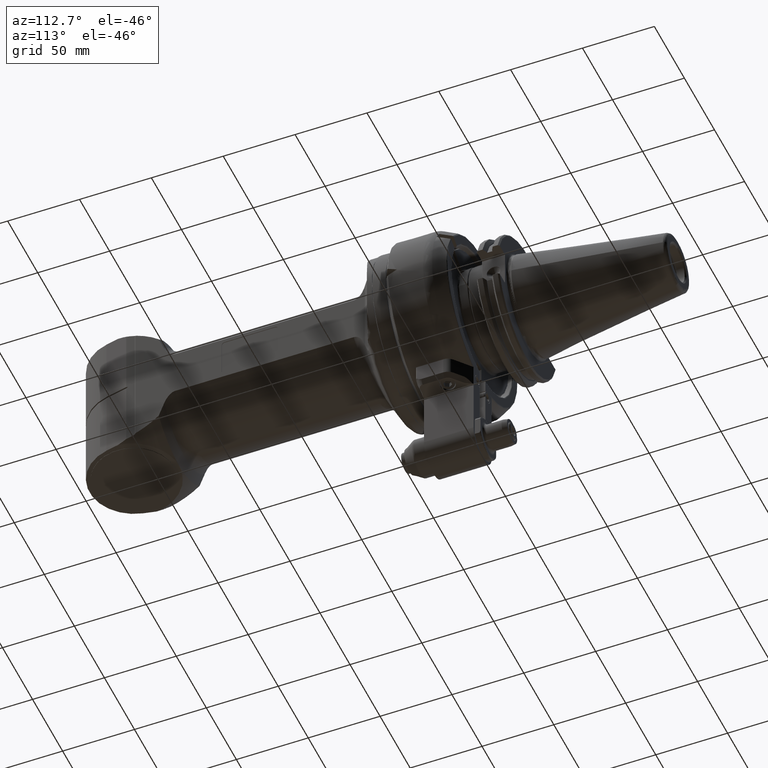
[diagram: clean part render]
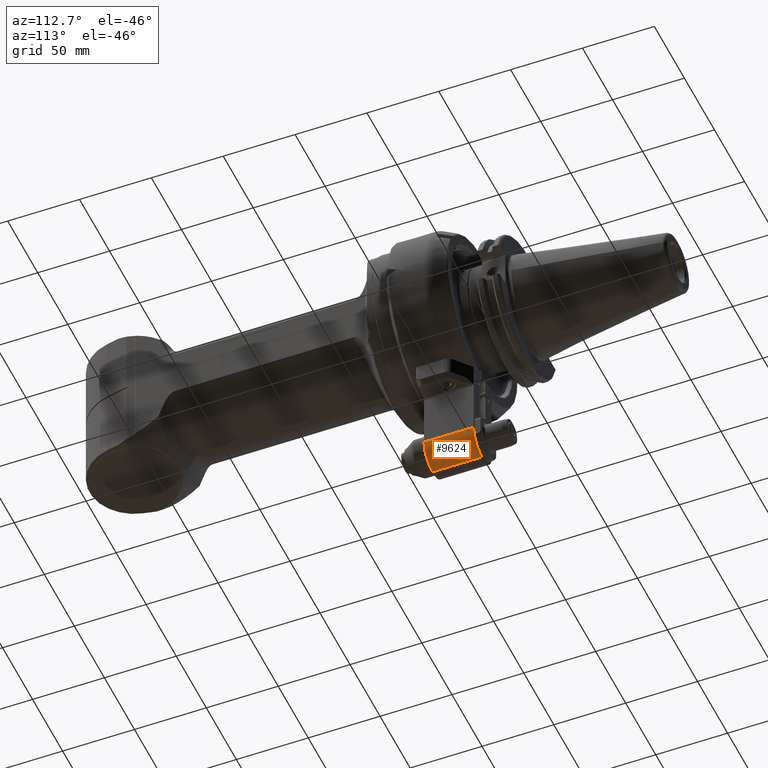
[diagram: same view with one face highlighted and labeled with its STEP entity id]
A machine part, auxiliary view. The second image highlights one B-rep face of the part: STEP entity #9624.
In plain terms, the highlighted cylindrical surface (edge-blend (fillet) strip) has radius 14 mm, axis along (0, 1, 0).
Its self-contained STEP definition (entity closure, byte-faithful):
#388=CYLINDRICAL_SURFACE('',#10492,14.);
#811=CIRCLE('',#10437,14.);
#838=CIRCLE('',#10493,14.);
#1370=FACE_OUTER_BOUND('',#1983,.T.);
#1983=EDGE_LOOP('',(#7480,#7481,#7482,#7483));
#2875=LINE('',#16074,#3488);
#2876=LINE('',#16090,#3489);
#3488=VECTOR('',#12361,34.5);
#3489=VECTOR('',#12370,34.5);
#4204=VERTEX_POINT('',#15909);
#4205=VERTEX_POINT('',#15911);
#4255=VERTEX_POINT('',#16072);
#4257=VERTEX_POINT('',#16089);
#5351=EDGE_CURVE('',#4204,#4205,#811,.T.);
#5423=EDGE_CURVE('',#4204,#4255,#2875,.T.);
#5427=EDGE_CURVE('',#4257,#4205,#2876,.T.);
#5428=EDGE_CURVE('',#4257,#4255,#838,.T.);
#7480=ORIENTED_EDGE('',*,*,#5427,.T.);
#7481=ORIENTED_EDGE('',*,*,#5351,.F.);
#7482=ORIENTED_EDGE('',*,*,#5423,.T.);
#7483=ORIENTED_EDGE('',*,*,#5428,.F.);
#9624=ADVANCED_FACE('',(#1370),#388,.T.);
#10437=AXIS2_PLACEMENT_3D('',#15912,#12218,#12219);
#10492=AXIS2_PLACEMENT_3D('',#16088,#12368,#12369);
#10493=AXIS2_PLACEMENT_3D('',#16091,#12371,#12372);
#12218=DIRECTION('center_axis',(0.,1.,0.));
#12219=DIRECTION('ref_axis',(1.,0.,0.));
#12361=DIRECTION('',(0.,-1.,0.));
#12368=DIRECTION('center_axis',(0.,1.,0.));
#12369=DIRECTION('ref_axis',(0.,0.,1.));
#12370=DIRECTION('',(0.,1.,0.));
#12371=DIRECTION('center_axis',(0.,-1.,0.));
#12372=DIRECTION('ref_axis',(0.,0.,-1.));
#15909=CARTESIAN_POINT('',(15.,42.499999769231,-112.25034668789));
#15911=CARTESIAN_POINT('',(1.,42.499999769231,-126.2503466879));
#15912=CARTESIAN_POINT('Origin',(1.,42.499999769231,-112.25034668789));
#16072=CARTESIAN_POINT('',(15.,7.999999769231,-112.25034668789));
#16074=CARTESIAN_POINT('',(15.,42.499999769231,-112.25034668789));
#16088=CARTESIAN_POINT('Origin',(1.,33.999999769231,-112.25034668789));
#16089=CARTESIAN_POINT('',(1.,7.999999769231,-126.2503466879));
#16090=CARTESIAN_POINT('',(1.,7.999999769231,-126.2503466879));
#16091=CARTESIAN_POINT('Origin',(1.,7.999999769231,-112.25034668789));